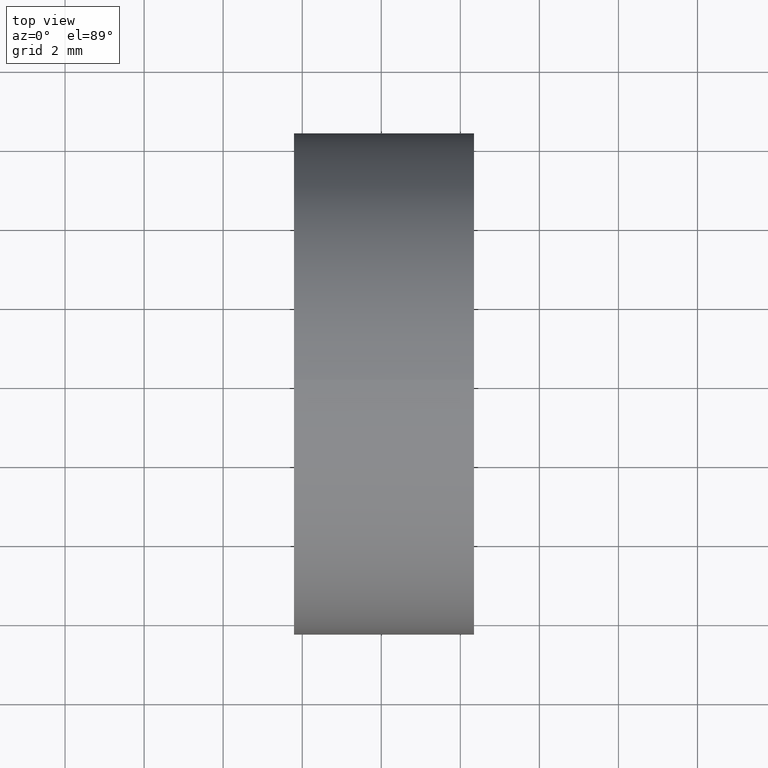
[diagram: clean part render]
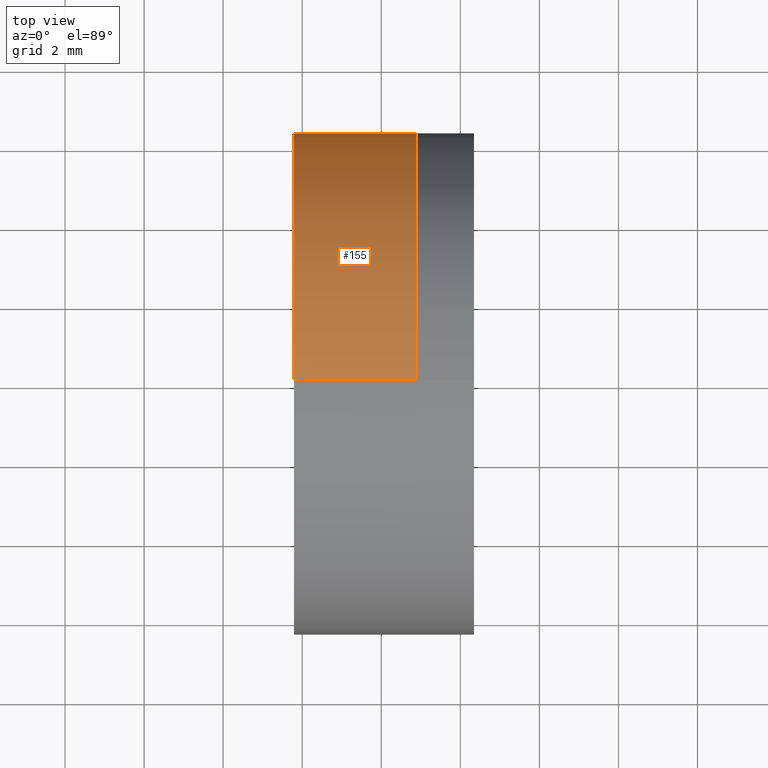
[diagram: same view with one face highlighted and labeled with its STEP entity id]
A machine part, top view. The second image highlights one B-rep face of the part: STEP entity #155.
In plain terms, the highlighted cylindrical surface (partial cylindrical patch) has radius 6.35 mm, axis along (-1, -0, 0).
Its self-contained STEP definition (entity closure, byte-faithful):
#4 = LINE ( 'NONE', #68, #142 ) ;
#15 = DIRECTION ( 'NONE',  ( -1.000000000000000000, -0.0000000000000000000, 1.836970198721029700E-016 ) ) ;
#18 = CIRCLE ( 'NONE', #313, 6.350000000000041400 ) ;
#33 = DIRECTION ( 'NONE',  ( 1.878145495644168800E-016, 0.0000000000000000000, 1.000000000000000000 ) ) ;
#41 = AXIS2_PLACEMENT_3D ( 'NONE', #298, #122, #33 ) ;
#47 = CARTESIAN_POINT ( 'NONE',  ( 228.8920918545435900, 7.776507174585745400E-016, -6.350000000000084900 ) ) ;
#48 = ORIENTED_EDGE ( 'NONE', *, *, #194, .T. ) ;
#62 = EDGE_CURVE ( 'NONE', #262, #322, #4, .T. ) ;
#64 = CARTESIAN_POINT ( 'NONE',  ( 225.7919910479895400, 7.776507174585746400E-016, -6.350000000000048500 ) ) ;
#68 = CARTESIAN_POINT ( 'NONE',  ( -0.8160621761658051200, 7.776507174585743400E-016, -6.350000000000041400 ) ) ;
#84 = ORIENTED_EDGE ( 'NONE', *, *, #238, .F. ) ;
#85 = FACE_OUTER_BOUND ( 'NONE', #204, .T. ) ;
#88 = CARTESIAN_POINT ( 'NONE',  ( 225.7919910479895400, 0.0000000000000000000, -4.162722405629622800E-014 ) ) ;
#91 = DIRECTION ( 'NONE',  ( -1.000000000000000000, -0.0000000000000000000, 1.836970198721029700E-016 ) ) ;
#94 = CARTESIAN_POINT ( 'NONE',  ( -0.8160621761658027900, 0.0000000000000000000, 6.350000000000041400 ) ) ;
#122 = DIRECTION ( 'NONE',  ( -1.000000000000000000, -0.0000000000000000000, 1.836970198721029700E-016 ) ) ;
#125 = EDGE_CURVE ( 'NONE', #141, #322, #18, .T. ) ;
#141 = VERTEX_POINT ( 'NONE', #248 ) ;
#142 = VECTOR ( 'NONE', #205, 1000.000000000000000 ) ;
#155 = ADVANCED_FACE ( 'NONE', ( #85 ), #338, .T. ) ;
#194 = EDGE_CURVE ( 'NONE', #304, #262, #286, .T. ) ;
#204 = EDGE_LOOP ( 'NONE', ( #48, #209, #217, #84 ) ) ;
#205 = DIRECTION ( 'NONE',  ( -1.000000000000000000, -0.0000000000000000000, 1.836970198721029700E-016 ) ) ;
#209 = ORIENTED_EDGE ( 'NONE', *, *, #62, .T. ) ;
#213 = DIRECTION ( 'NONE',  ( 0.0000000000000000000, 0.0000000000000000000, 1.000000000000000000 ) ) ;
#215 = LINE ( 'NONE', #94, #310 ) ;
#217 = ORIENTED_EDGE ( 'NONE', *, *, #125, .F. ) ;
#220 = AXIS2_PLACEMENT_3D ( 'NONE', #221, #243, #213 ) ;
#221 = CARTESIAN_POINT ( 'NONE',  ( 228.8920918545435900, 0.0000000000000000000, -4.219670333576331500E-014 ) ) ;
#238 = EDGE_CURVE ( 'NONE', #304, #141, #215, .T. ) ;
#243 = DIRECTION ( 'NONE',  ( -1.000000000000000000, -0.0000000000000000000, 1.836970198721029700E-016 ) ) ;
#248 = CARTESIAN_POINT ( 'NONE',  ( 225.7919910479895400, 0.0000000000000000000, 6.350000000000003200 ) ) ;
#262 = VERTEX_POINT ( 'NONE', #47 ) ;
#286 = CIRCLE ( 'NONE', #220, 6.350000000000042300 ) ;
#293 = DIRECTION ( 'NONE',  ( 0.0000000000000000000, 0.0000000000000000000, 1.000000000000000000 ) ) ;
#298 = CARTESIAN_POINT ( 'NONE',  ( -0.8160621761658039000, 0.0000000000000000000, 0.0000000000000000000 ) ) ;
#304 = VERTEX_POINT ( 'NONE', #307 ) ;
#307 = CARTESIAN_POINT ( 'NONE',  ( 228.8920918545435900, 0.0000000000000000000, 6.349999999999999600 ) ) ;
#310 = VECTOR ( 'NONE', #91, 1000.000000000000000 ) ;
#313 = AXIS2_PLACEMENT_3D ( 'NONE', #88, #15, #293 ) ;
#322 = VERTEX_POINT ( 'NONE', #64 ) ;
#338 = CYLINDRICAL_SURFACE ( 'NONE', #41, 6.350000000000041400 ) ;